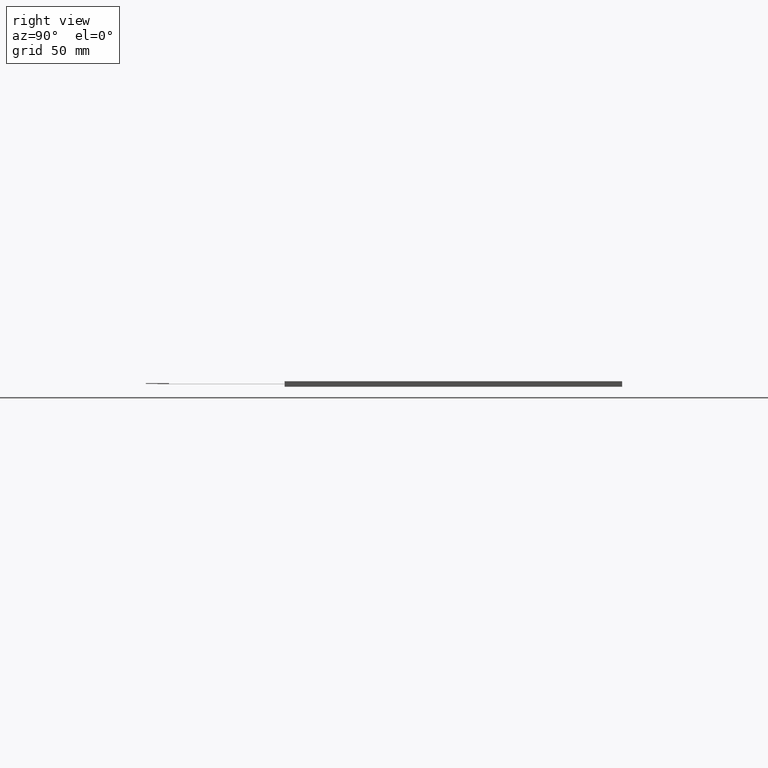
[diagram: clean part render]
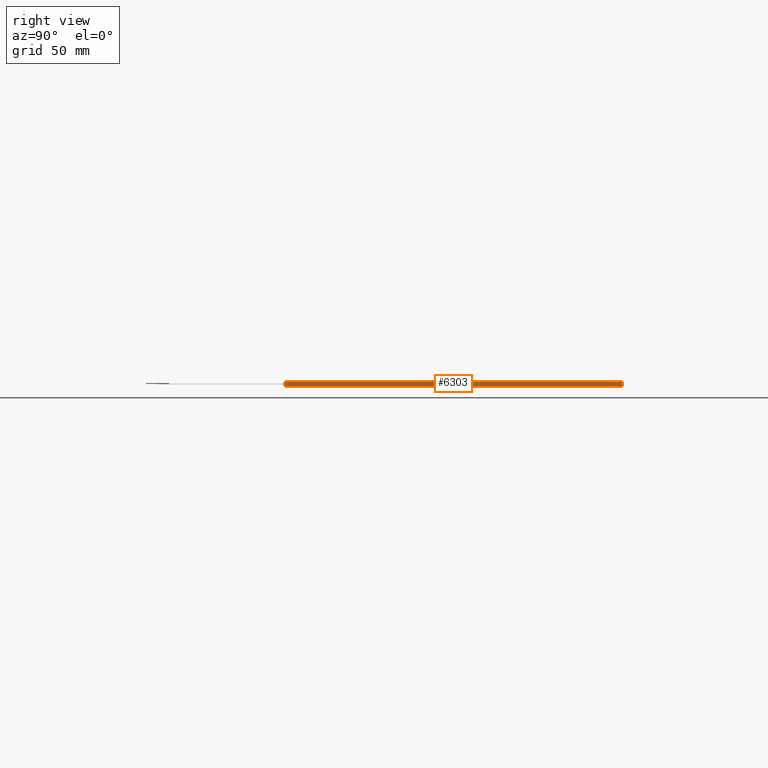
[diagram: same view with one face highlighted and labeled with its STEP entity id]
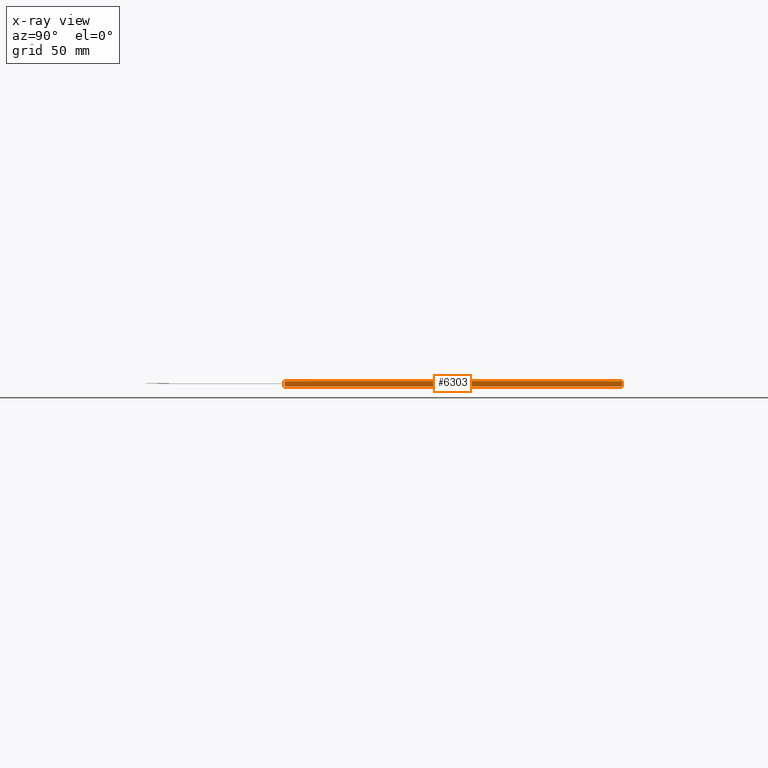
[diagram: x-ray of the same camera — body ghosted, the highlighted face saturated]
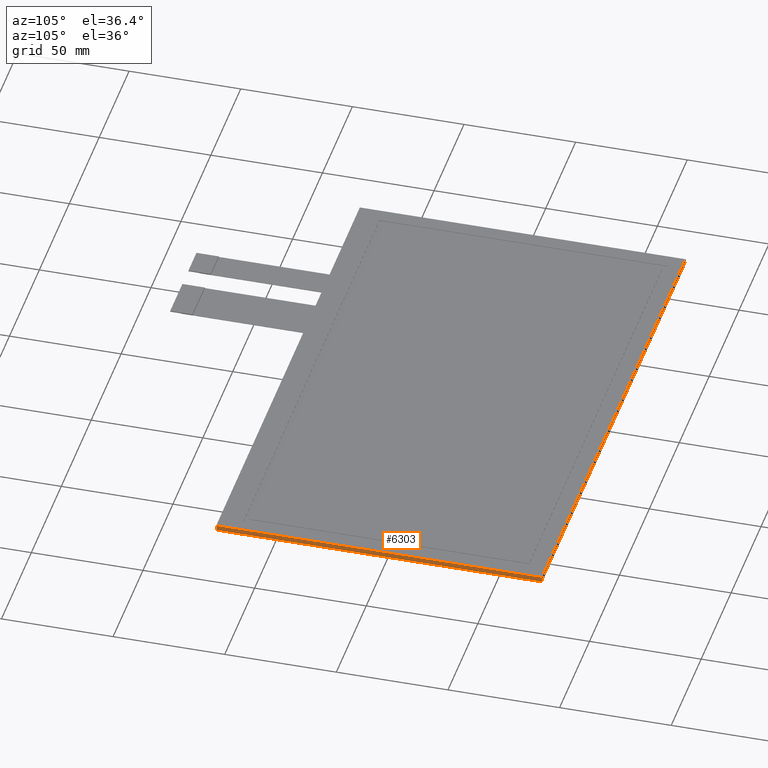
[diagram: same view with one face highlighted and labeled with its STEP entity id]
A machine part, right view. The second image highlights one B-rep face of the part: STEP entity #6303.
The next image is the same camera in x-ray: the body ghosted, the highlighted face saturated — about 0% of this face is hidden behind the body in this view.
A second angle (auxiliary view) of the same face is appended — the face is thin or edge-on in the first view.
In plain terms, the highlighted planar face has unit normal (1, 0, 0).
Its self-contained STEP definition (entity closure, byte-faithful):
#365=PLANE('',#6633);
#667=FACE_OUTER_BOUND('',#973,.T.);
#973=EDGE_LOOP('',(#5985,#5986,#5987,#5988));
#1848=LINE('',#9903,#2728);
#1853=LINE('',#9913,#2733);
#1854=LINE('',#9916,#2734);
#1855=LINE('',#9917,#2735);
#2728=VECTOR('',#8118,10.);
#2733=VECTOR('',#8127,10.);
#2734=VECTOR('',#8130,10.);
#2735=VECTOR('',#8131,10.);
#3329=VERTEX_POINT('',#9896);
#3332=VERTEX_POINT('',#9901);
#3335=VERTEX_POINT('',#9911);
#3336=VERTEX_POINT('',#9915);
#4216=EDGE_CURVE('',#3332,#3329,#1848,.T.);
#4221=EDGE_CURVE('',#3332,#3335,#1853,.T.);
#4222=EDGE_CURVE('',#3336,#3335,#1854,.T.);
#4223=EDGE_CURVE('',#3329,#3336,#1855,.T.);
#5985=ORIENTED_EDGE('',*,*,#4216,.F.);
#5986=ORIENTED_EDGE('',*,*,#4221,.T.);
#5987=ORIENTED_EDGE('',*,*,#4222,.F.);
#5988=ORIENTED_EDGE('',*,*,#4223,.F.);
#6303=ADVANCED_FACE('',(#667),#365,.T.);
#6633=AXIS2_PLACEMENT_3D('',#9914,#8128,#8129);
#8118=DIRECTION('',(0.,1.,0.));
#8127=DIRECTION('',(0.,0.,-1.));
#8128=DIRECTION('center_axis',(1.,0.,0.));
#8129=DIRECTION('ref_axis',(0.,-1.,0.));
#8130=DIRECTION('',(0.,-1.,0.));
#8131=DIRECTION('',(0.,0.,-1.));
#9896=CARTESIAN_POINT('',(119.64,70.66,0.));
#9901=CARTESIAN_POINT('',(119.64,-75.34,0.));
#9903=CARTESIAN_POINT('',(119.64,-75.34,0.));
#9911=CARTESIAN_POINT('',(119.64,-75.34,-2.35));
#9913=CARTESIAN_POINT('',(119.64,-75.34,0.));
#9914=CARTESIAN_POINT('Origin',(119.64,70.66,0.));
#9915=CARTESIAN_POINT('',(119.64,70.66,-2.35));
#9916=CARTESIAN_POINT('',(119.64,-75.34,-2.35));
#9917=CARTESIAN_POINT('',(119.64,70.66,0.));